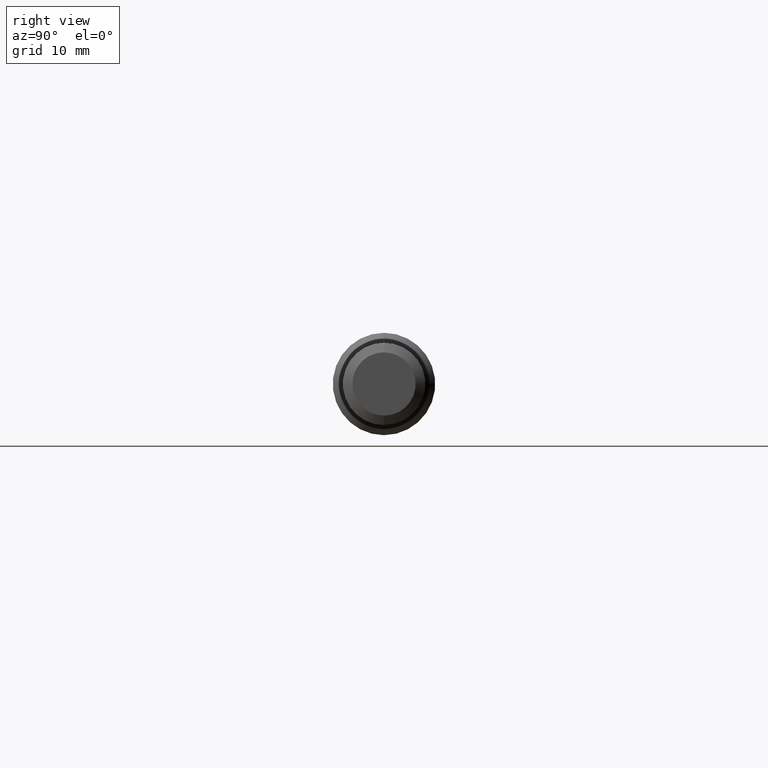
[diagram: clean part render]
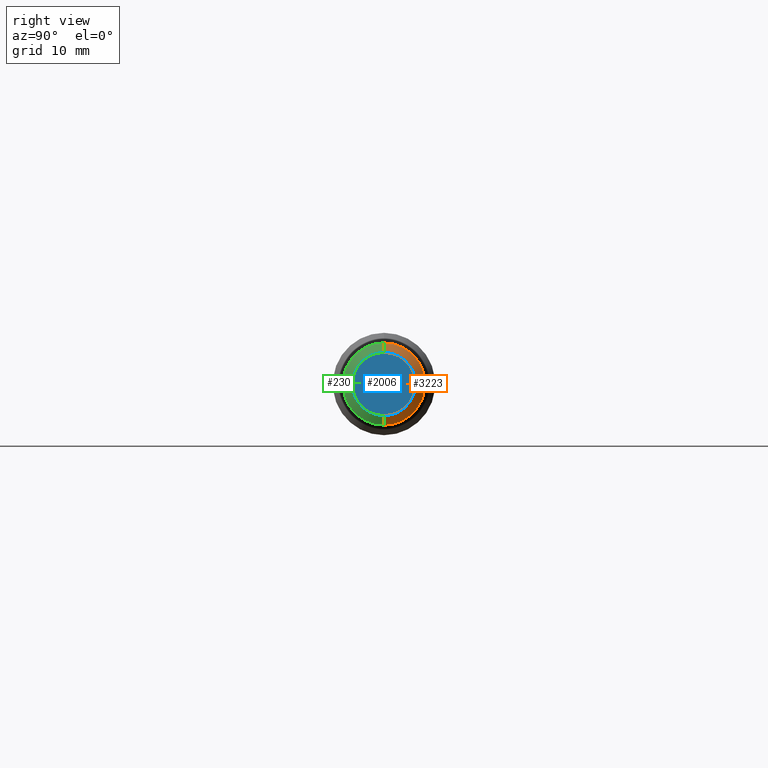
[diagram: same view with three faces highlighted in distinct colors, each labeled with its STEP entity id]
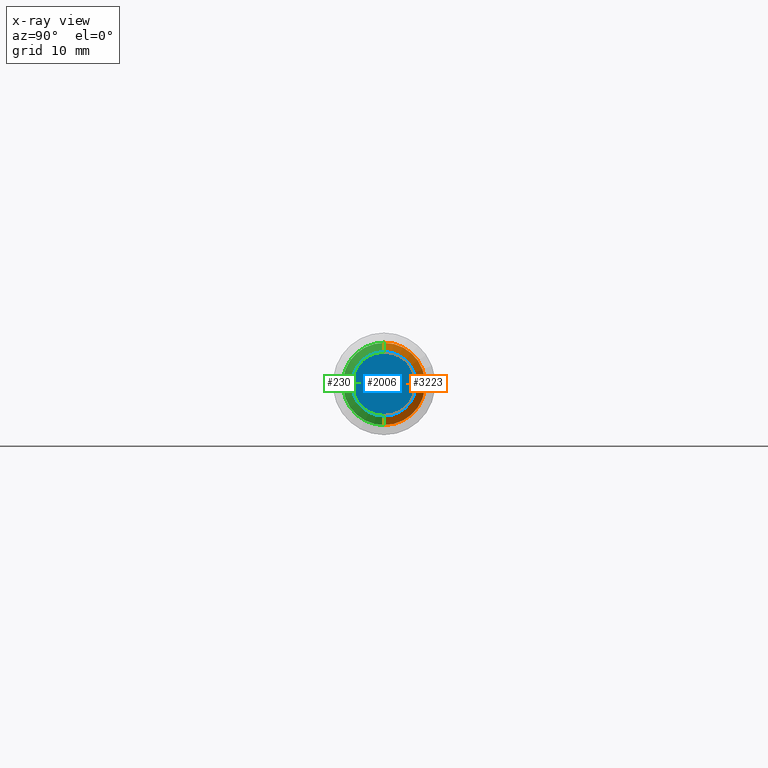
[diagram: x-ray of the same camera — body ghosted, the three highlighted faces saturated]
A machine part, right view with three faces highlighted in distinct colors.
The next image is the same camera in x-ray (body ghosted, the three faces saturated) — at least one of them is partly hidden behind the body in this view.
Their STEP definitions:

[orange] entity #3223 — the highlighted conical surface has half-angle 60.25 deg.
#207 = CONICAL_SURFACE ( 'NONE', #3177, 0.2038409090909092669, 1.051560874326587403 ) ;
#218 = AXIS2_PLACEMENT_3D ( 'NONE', #3156, #419, #1426 ) ;
#229 = EDGE_CURVE ( 'NONE', #3200, #1013, #1927, .T. ) ;
#261 = VECTOR ( 'NONE', #1091, 39.37007874015748854 ) ;
#313 = CARTESIAN_POINT ( 'NONE',  ( 3.468626286683621718, 0.000000000000000000, 0.2038409090909092669 ) ) ;
#332 = DIRECTION ( 'NONE',  ( 0.000000000000000000, 0.000000000000000000, 1.000000000000000000 ) ) ;
#419 = DIRECTION ( 'NONE',  ( -1.000000000000000000, -0.000000000000000000, -0.000000000000000000 ) ) ;
#596 = EDGE_CURVE ( 'NONE', #1011, #3001, #3136, .T. ) ;
#608 = FACE_OUTER_BOUND ( 'NONE', #1790, .T. ) ;
#672 = EDGE_CURVE ( 'NONE', #1013, #3001, #1457, .T. ) ;
#736 = DIRECTION ( 'NONE',  ( -1.000000000000000000, -0.000000000000000000, -0.000000000000000000 ) ) ;
#752 = DIRECTION ( 'NONE',  ( 0.000000000000000000, 0.000000000000000000, 1.000000000000000000 ) ) ;
#796 = VECTOR ( 'NONE', #1948, 39.37007874015748854 ) ;
#808 = CARTESIAN_POINT ( 'NONE',  ( 3.468626286683621718, 0.000000000000000000, 0.000000000000000000 ) ) ;
#825 = AXIS2_PLACEMENT_3D ( 'NONE', #936, #736, #752 ) ;
#936 = CARTESIAN_POINT ( 'NONE',  ( 3.496846153846153715, 0.000000000000000000, 0.000000000000000000 ) ) ;
#1011 = VERTEX_POINT ( 'NONE', #2973 ) ;
#1013 = VERTEX_POINT ( 'NONE', #1698 ) ;
#1091 = DIRECTION ( 'NONE',  ( -0.4962165036752048675, 0.000000000000000000, 0.8681988144891442660 ) ) ;
#1302 = ORIENTED_EDGE ( 'NONE', *, *, #672, .T. ) ;
#1426 = DIRECTION ( 'NONE',  ( 0.000000000000000000, 0.000000000000000000, 1.000000000000000000 ) ) ;
#1457 = LINE ( 'NONE', #2461, #796 ) ;
#1698 = CARTESIAN_POINT ( 'NONE',  ( 3.496846153846153715, 1.891667602628441377E-17, -0.1544663819760516976 ) ) ;
#1790 = EDGE_LOOP ( 'NONE', ( #2876, #1302, #2369, #2345 ) ) ;
#1927 = CIRCLE ( 'NONE', #825, 0.1544663819760516976 ) ;
#1948 = DIRECTION ( 'NONE',  ( -0.4962165036752048675, 1.063236899187657258E-16, -0.8681988144891442660 ) ) ;
#2069 = EDGE_CURVE ( 'NONE', #3200, #1011, #2554, .T. ) ;
#2345 = ORIENTED_EDGE ( 'NONE', *, *, #2069, .F. ) ;
#2369 = ORIENTED_EDGE ( 'NONE', *, *, #596, .F. ) ;
#2459 = CARTESIAN_POINT ( 'NONE',  ( 3.496846153846153715, 0.000000000000000000, 0.1544663819760516976 ) ) ;
#2461 = CARTESIAN_POINT ( 'NONE',  ( 3.468626286683621718, 2.496331168534686643E-17, -0.2038409090909092669 ) ) ;
#2554 = LINE ( 'NONE', #313, #261 ) ;
#2844 = DIRECTION ( 'NONE',  ( -1.000000000000000000, -0.000000000000000000, -0.000000000000000000 ) ) ;
#2876 = ORIENTED_EDGE ( 'NONE', *, *, #229, .T. ) ;
#2973 = CARTESIAN_POINT ( 'NONE',  ( 3.470250000000000057, 0.000000000000000000, 0.2010000000000002340 ) ) ;
#3001 = VERTEX_POINT ( 'NONE', #3118 ) ;
#3118 = CARTESIAN_POINT ( 'NONE',  ( 3.470250000000000057, 2.461540066286182816E-17, -0.2010000000000002340 ) ) ;
#3136 = CIRCLE ( 'NONE', #218, 0.2010000000000002340 ) ;
#3156 = CARTESIAN_POINT ( 'NONE',  ( 3.470250000000000057, 0.000000000000000000, 0.000000000000000000 ) ) ;
#3177 = AXIS2_PLACEMENT_3D ( 'NONE', #808, #2844, #332 ) ;
#3200 = VERTEX_POINT ( 'NONE', #2459 ) ;
#3223 = ADVANCED_FACE ( 'NONE', ( #608 ), #207, .T. ) ;

[blue] entity #2006 — the highlighted planar face has unit normal (-1, 0, -0).
#170 = DIRECTION ( 'NONE',  ( -1.000000000000000000, -0.000000000000000000, -0.000000000000000000 ) ) ;
#286 = DIRECTION ( 'NONE',  ( -0.000000000000000000, 0.000000000000000000, 1.000000000000000000 ) ) ;
#500 = CARTESIAN_POINT ( 'NONE',  ( 3.500000000000000000, 0.000000000000000000, 0.000000000000000000 ) ) ;
#540 = EDGE_CURVE ( 'NONE', #1660, #2202, #2757, .T. ) ;
#565 = CIRCLE ( 'NONE', #1253, 0.1544663819760516976 ) ;
#710 = DIRECTION ( 'NONE',  ( 0.000000000000000000, 0.000000000000000000, 1.000000000000000000 ) ) ;
#727 = AXIS2_PLACEMENT_3D ( 'NONE', #2522, #1338, #286 ) ;
#939 = AXIS2_PLACEMENT_3D ( 'NONE', #1899, #170, #1685 ) ;
#1049 = DIRECTION ( 'NONE',  ( -1.000000000000000000, -0.000000000000000000, -0.000000000000000000 ) ) ;
#1078 = PLANE ( 'NONE',  #727 ) ;
#1253 = AXIS2_PLACEMENT_3D ( 'NONE', #500, #1049, #710 ) ;
#1338 = DIRECTION ( 'NONE',  ( -1.000000000000000000, 0.000000000000000000, -0.000000000000000000 ) ) ;
#1503 = ORIENTED_EDGE ( 'NONE', *, *, #3101, .F. ) ;
#1660 = VERTEX_POINT ( 'NONE', #2753 ) ;
#1679 = ORIENTED_EDGE ( 'NONE', *, *, #540, .F. ) ;
#1685 = DIRECTION ( 'NONE',  ( 0.000000000000000000, 0.000000000000000000, 1.000000000000000000 ) ) ;
#1899 = CARTESIAN_POINT ( 'NONE',  ( 3.500000000000000000, 0.000000000000000000, 0.000000000000000000 ) ) ;
#2006 = ADVANCED_FACE ( 'NONE', ( #3048 ), #1078, .F. ) ;
#2202 = VERTEX_POINT ( 'NONE', #2402 ) ;
#2402 = CARTESIAN_POINT ( 'NONE',  ( 3.500000000000000000, 0.000000000000000000, 0.1544663819760516976 ) ) ;
#2522 = CARTESIAN_POINT ( 'NONE',  ( 3.500000000000000000, 0.2030000000000000138, 0.000000000000000000 ) ) ;
#2753 = CARTESIAN_POINT ( 'NONE',  ( 3.500000000000000000, 1.891667602628441377E-17, -0.1544663819760516976 ) ) ;
#2757 = CIRCLE ( 'NONE', #939, 0.1544663819760516976 ) ;
#2827 = EDGE_LOOP ( 'NONE', ( #1503, #1679 ) ) ;
#3048 = FACE_OUTER_BOUND ( 'NONE', #2827, .T. ) ;
#3101 = EDGE_CURVE ( 'NONE', #2202, #1660, #565, .T. ) ;

[green] entity #230 — the highlighted conical surface has half-angle 60.25 deg.
#205 = AXIS2_PLACEMENT_3D ( 'NONE', #1271, #2996, #753 ) ;
#230 = ADVANCED_FACE ( 'NONE', ( #506 ), #1664, .T. ) ;
#249 = AXIS2_PLACEMENT_3D ( 'NONE', #2037, #1525, #259 ) ;
#259 = DIRECTION ( 'NONE',  ( 0.000000000000000000, 0.000000000000000000, 1.000000000000000000 ) ) ;
#261 = VECTOR ( 'NONE', #1091, 39.37007874015748854 ) ;
#313 = CARTESIAN_POINT ( 'NONE',  ( 3.468626286683621718, 0.000000000000000000, 0.2038409090909092669 ) ) ;
#496 = EDGE_CURVE ( 'NONE', #1013, #3200, #570, .T. ) ;
#506 = FACE_OUTER_BOUND ( 'NONE', #2537, .T. ) ;
#527 = ORIENTED_EDGE ( 'NONE', *, *, #496, .T. ) ;
#570 = CIRCLE ( 'NONE', #994, 0.1544663819760516976 ) ;
#664 = DIRECTION ( 'NONE',  ( -1.000000000000000000, -0.000000000000000000, -0.000000000000000000 ) ) ;
#672 = EDGE_CURVE ( 'NONE', #1013, #3001, #1457, .T. ) ;
#753 = DIRECTION ( 'NONE',  ( 0.000000000000000000, 0.000000000000000000, 1.000000000000000000 ) ) ;
#786 = ORIENTED_EDGE ( 'NONE', *, *, #672, .F. ) ;
#796 = VECTOR ( 'NONE', #1948, 39.37007874015748854 ) ;
#975 = ORIENTED_EDGE ( 'NONE', *, *, #2069, .T. ) ;
#994 = AXIS2_PLACEMENT_3D ( 'NONE', #1868, #664, #2639 ) ;
#1011 = VERTEX_POINT ( 'NONE', #2973 ) ;
#1013 = VERTEX_POINT ( 'NONE', #1698 ) ;
#1091 = DIRECTION ( 'NONE',  ( -0.4962165036752048675, 0.000000000000000000, 0.8681988144891442660 ) ) ;
#1271 = CARTESIAN_POINT ( 'NONE',  ( 3.470250000000000057, 0.000000000000000000, 0.000000000000000000 ) ) ;
#1457 = LINE ( 'NONE', #2461, #796 ) ;
#1525 = DIRECTION ( 'NONE',  ( -1.000000000000000000, -0.000000000000000000, -0.000000000000000000 ) ) ;
#1664 = CONICAL_SURFACE ( 'NONE', #249, 0.2038409090909092669, 1.051560874326587403 ) ;
#1698 = CARTESIAN_POINT ( 'NONE',  ( 3.496846153846153715, 1.891667602628441377E-17, -0.1544663819760516976 ) ) ;
#1868 = CARTESIAN_POINT ( 'NONE',  ( 3.496846153846153715, 0.000000000000000000, 0.000000000000000000 ) ) ;
#1948 = DIRECTION ( 'NONE',  ( -0.4962165036752048675, 1.063236899187657258E-16, -0.8681988144891442660 ) ) ;
#2037 = CARTESIAN_POINT ( 'NONE',  ( 3.468626286683621718, 0.000000000000000000, 0.000000000000000000 ) ) ;
#2069 = EDGE_CURVE ( 'NONE', #3200, #1011, #2554, .T. ) ;
#2260 = EDGE_CURVE ( 'NONE', #3001, #1011, #2816, .T. ) ;
#2459 = CARTESIAN_POINT ( 'NONE',  ( 3.496846153846153715, 0.000000000000000000, 0.1544663819760516976 ) ) ;
#2461 = CARTESIAN_POINT ( 'NONE',  ( 3.468626286683621718, 2.496331168534686643E-17, -0.2038409090909092669 ) ) ;
#2537 = EDGE_LOOP ( 'NONE', ( #786, #527, #975, #3015 ) ) ;
#2554 = LINE ( 'NONE', #313, #261 ) ;
#2639 = DIRECTION ( 'NONE',  ( 0.000000000000000000, 0.000000000000000000, 1.000000000000000000 ) ) ;
#2816 = CIRCLE ( 'NONE', #205, 0.2010000000000002340 ) ;
#2973 = CARTESIAN_POINT ( 'NONE',  ( 3.470250000000000057, 0.000000000000000000, 0.2010000000000002340 ) ) ;
#2996 = DIRECTION ( 'NONE',  ( -1.000000000000000000, -0.000000000000000000, -0.000000000000000000 ) ) ;
#3001 = VERTEX_POINT ( 'NONE', #3118 ) ;
#3015 = ORIENTED_EDGE ( 'NONE', *, *, #2260, .F. ) ;
#3118 = CARTESIAN_POINT ( 'NONE',  ( 3.470250000000000057, 2.461540066286182816E-17, -0.2010000000000002340 ) ) ;
#3200 = VERTEX_POINT ( 'NONE', #2459 ) ;